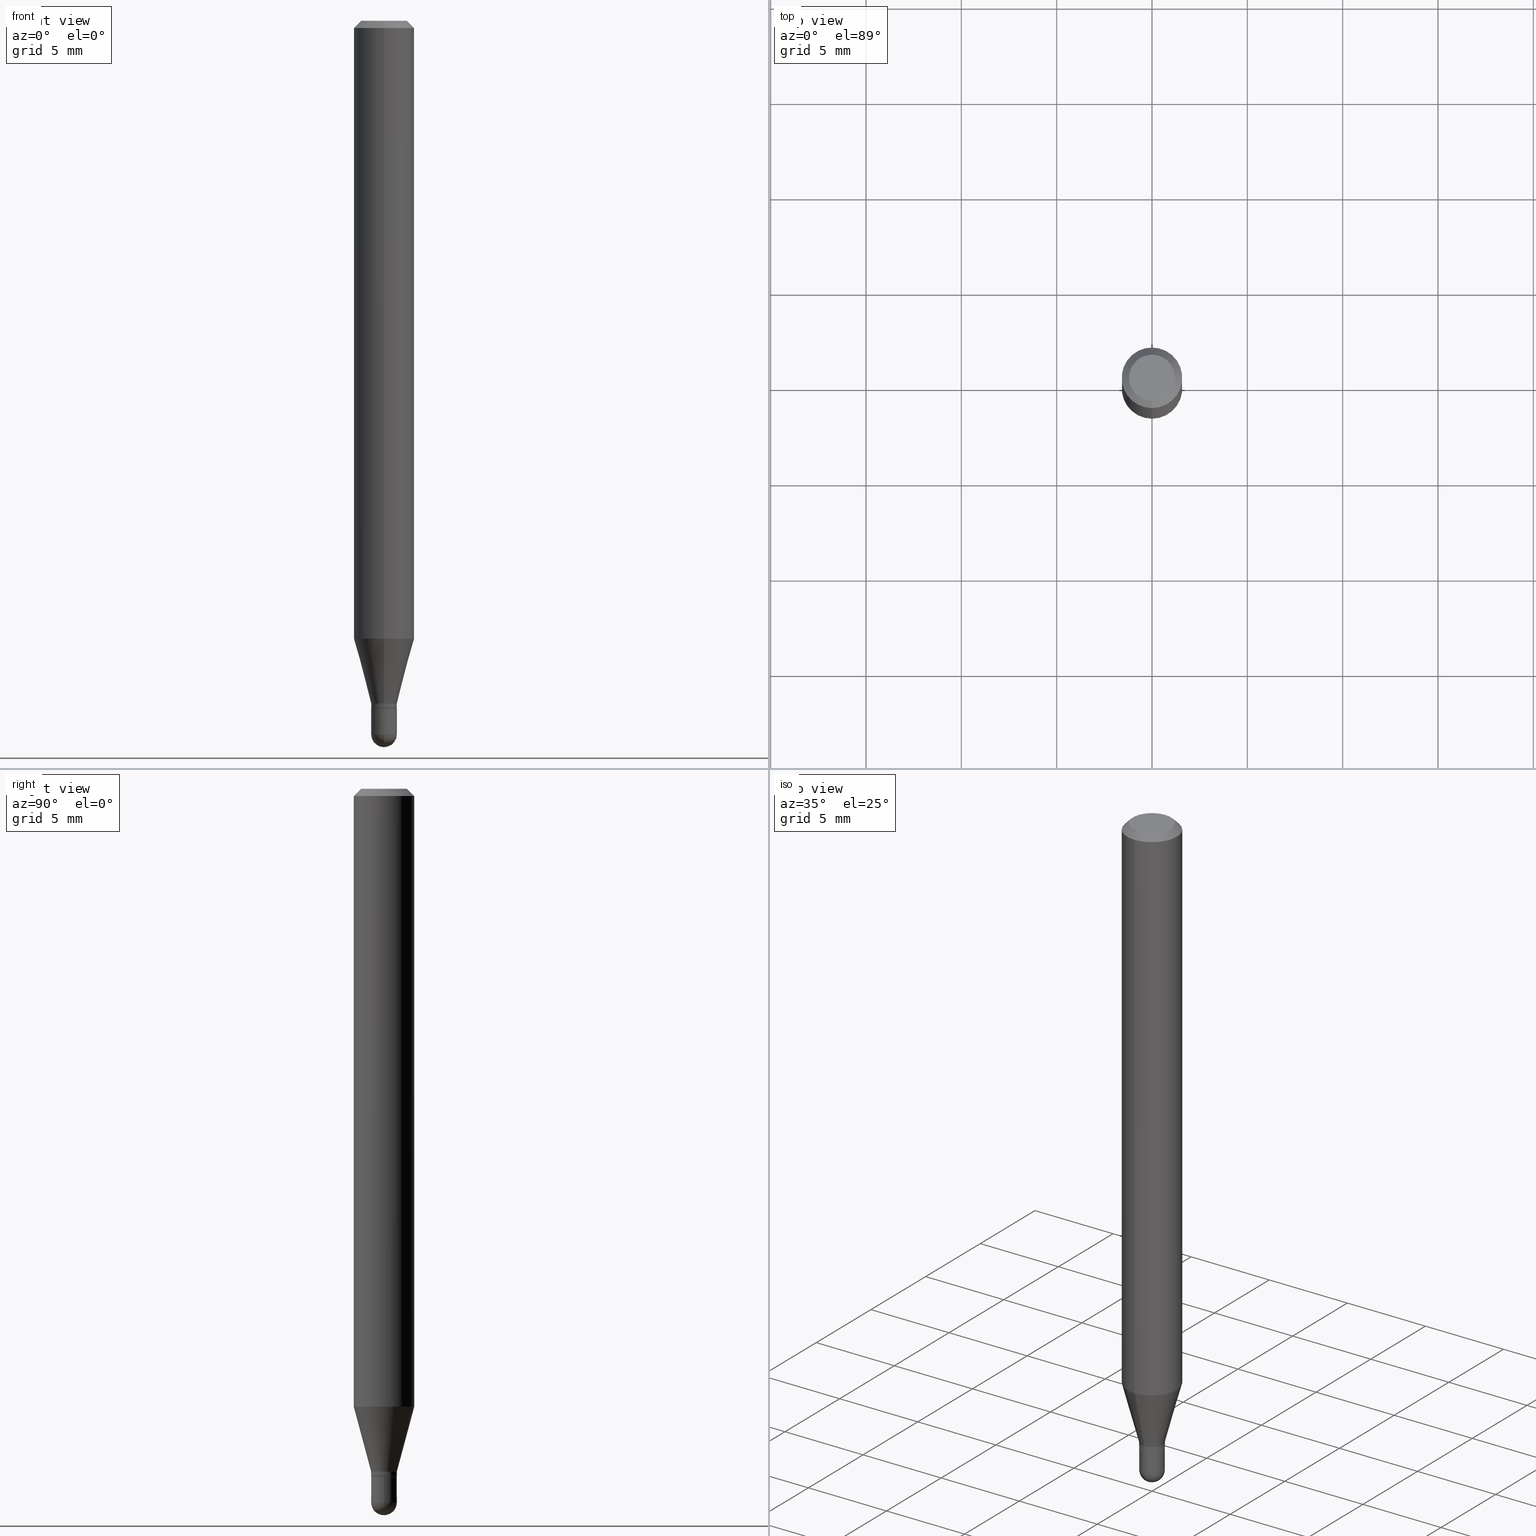
[diagram: canonical four-view strip — front | top / right | iso, engineering-drawing reading convention]
A machine part, canonical four-view strip (front | top / right | iso — engineering-drawing reading convention). The complete STEP part file that produces these views, byte-faithful:
ISO-10303-21;
HEADER;
FILE_DESCRIPTION (( 'STEP AP203' ),
    '1' );
FILE_NAME ('00717.STEP',
    '2024-03-07T18:06:19',
    ( '' ),
    ( '' ),
    'SwSTEP 2.0',
    'SolidWorks 2023',
    '' );
FILE_SCHEMA (( 'CONFIG_CONTROL_DESIGN' ));
ENDSEC;

DATA;
#1 = AXIS2_PLACEMENT_3D ( 'NONE', #183, #483, #176 ) ;
#2 = PERSON_AND_ORGANIZATION_ROLE ( 'design_supplier' ) ;
#3 = EDGE_CURVE ( 'NONE', #510, #417, #318, .T. ) ;
#4 = ORIENTED_EDGE ( 'NONE', *, *, #464, .F. ) ;
#5 = DIRECTION ( 'NONE',  ( -2.445481784705072180E-29, 3.491462752863905910E-15, 1.000000000000000000 ) ) ;
#6 = COORDINATED_UNIVERSAL_TIME_OFFSET ( 5, 0, .BEHIND. ) ;
#7 = ORIENTED_EDGE ( 'NONE', *, *, #30, .T. ) ;
#8 = EDGE_CURVE ( 'NONE', #417, #119, #381, .T. ) ;
#9 = CARTESIAN_POINT ( 'NONE',  ( -1.850485109586510286E-16, -0.02650000000000484607, -1.409999999999999920 ) ) ;
#10 = APPROVAL_PERSON_ORGANIZATION ( #404, #137, #87 ) ;
#11 = CIRCLE ( 'NONE', #469, 0.06250000000000000000 ) ;
#12 = VECTOR ( 'NONE', #425, 39.37007874015748143 ) ;
#13 = ORIENTED_EDGE ( 'NONE', *, *, #65, .T. ) ;
#14 = CARTESIAN_POINT ( 'NONE',  ( 0.000000000000000000, 0.000000000000000000, 0.000000000000000000 ) ) ;
#15 = CARTESIAN_POINT ( 'NONE',  ( 3.601132095247472724E-29, -5.147943066803115176E-15, -1.473500000000000032 ) ) ;
#16 = ORIENTED_EDGE ( 'NONE', *, *, #89, .T. ) ;
#17 = DIRECTION ( 'NONE',  ( 2.445481784705072180E-29, -3.491462752863906305E-15, -1.000000000000000000 ) ) ;
#18 = EDGE_CURVE ( 'NONE', #37, #148, #503, .T. ) ;
#19 = DIRECTION ( 'NONE',  ( 6.982962677686265922E-15, 1.000000000000000000, -3.483106191921935554E-15 ) ) ;
#20 = ADVANCED_FACE ( 'NONE', ( #489 ), #244, .F. ) ;
#21 = CARTESIAN_POINT ( 'NONE',  ( -3.773273898774340269E-16, -0.04749999999999999362, 1.569832783351905735E-16 ) ) ;
#22 = CYLINDRICAL_SURFACE ( 'NONE', #128, 0.06250000000000000000 ) ;
#23 = DIRECTION ( 'NONE',  ( 1.000000000000000000, -6.982962677686277755E-15, 0.000000000000000000 ) ) ;
#24 = DIRECTION ( 'NONE',  ( 5.024295867788190974E-15, 0.7071067811865681119, 0.7071067811865270336 ) ) ;
#25 = CIRCLE ( 'NONE', #62, 0.02649999999999992292 ) ;
#26 = PRODUCT_DEFINITION ( 'UNKNOWN', '', #309, #45 ) ;
#27 = EDGE_LOOP ( 'NONE', ( #76, #426, #266, #198 ) ) ;
#28 = SPHERICAL_SURFACE ( 'NONE', #90, 0.02650000000000006170 ) ;
#29 = ORIENTED_EDGE ( 'NONE', *, *, #400, .F. ) ;
#30 = EDGE_CURVE ( 'NONE', #119, #169, #11, .T. ) ;
#31 = DIRECTION ( 'NONE',  ( -6.982962677686265133E-15, -1.000000000000000000, 3.491462752863906305E-15 ) ) ;
#32 = DIRECTION ( 'NONE',  ( -2.445468806185136597E-29, 3.491481338843145583E-15, 1.000000000000000000 ) ) ;
#33 = ORIENTED_EDGE ( 'NONE', *, *, #142, .F. ) ;
#34 = CARTESIAN_POINT ( 'NONE',  ( 0.000000000000000000, 0.000000000000000000, 0.000000000000000000 ) ) ;
#35 = LINE ( 'NONE', #151, #38 ) ;
#36 = CONICAL_SURFACE ( 'NONE', #256, 0.02599999999999999534, 0.7853981633974739252 ) ;
#37 = VERTEX_POINT ( 'NONE', #9 ) ;
#38 = VECTOR ( 'NONE', #420, 39.37007874015748143 ) ;
#39 = CARTESIAN_POINT ( 'NONE',  ( -0.02649999999999999925, -4.863006801994895019E-15, -1.420000000000000151 ) ) ;
#40 = CARTESIAN_POINT ( 'NONE',  ( 3.668222677057610775E-31, -5.237194129295862514E-17, -0.01500000000000000812 ) ) ;
#41 = ORIENTED_EDGE ( 'NONE', *, *, #380, .T. ) ;
#42 = SECURITY_CLASSIFICATION_LEVEL ( 'unclassified' ) ;
#43 = APPROVAL_STATUS ( 'not_yet_approved' ) ;
#44 =( CONVERSION_BASED_UNIT ( 'INCH', #280 ) LENGTH_UNIT ( ) NAMED_UNIT ( #443 ) );
#45 = DESIGN_CONTEXT ( 'detailed design', #264, 'design' ) ;
#46 = DIRECTION ( 'NONE',  ( -2.445481784705072180E-29, 3.491462752863906305E-15, 1.000000000000000000 ) ) ;
#47 = DIRECTION ( 'NONE',  ( -2.445468806185136597E-29, 3.491481338843145583E-15, 1.000000000000000000 ) ) ;
#48 = AXIS2_PLACEMENT_3D ( 'NONE', #327, #124, #88 ) ;
#49 = CIRCLE ( 'NONE', #335, 0.06250000000000000000 ) ;
#50 = ORIENTED_EDGE ( 'NONE', *, *, #512, .F. ) ;
#51 = PERSON_AND_ORGANIZATION ( #355, #179 ) ;
#52 = EDGE_CURVE ( 'NONE', #37, #510, #357, .T. ) ;
#53 = ORIENTED_EDGE ( 'NONE', *, *, #118, .T. ) ;
#54 = CC_DESIGN_APPROVAL ( #94, ( #26 ) ) ;
#55 = CARTESIAN_POINT ( 'NONE',  ( 2.166990912298824479E-46, -3.093855821542496760E-32, -8.861202425844959291E-18 ) ) ;
#56 = CIRCLE ( 'NONE', #60, 0.02650000000000000272 ) ;
#57 = CIRCLE ( 'NONE', #147, 0.02649999999999992639 ) ;
#58 = DIRECTION ( 'NONE',  ( -6.982962677686265133E-15, -1.000000000000000000, 3.491462752863906305E-15 ) ) ;
#59 = ADVANCED_FACE ( 'NONE', ( #212 ), #96, .T. ) ;
#60 = AXIS2_PLACEMENT_3D ( 'NONE', #171, #325, #429 ) ;
#61 = AXIS2_PLACEMENT_3D ( 'NONE', #283, #485, #293 ) ;
#62 = AXIS2_PLACEMENT_3D ( 'NONE', #150, #265, #305 ) ;
#63 = PLANE ( 'NONE',  #385 ) ;
#64 = DIRECTION ( 'NONE',  ( -6.982962677686265922E-15, -1.000000000000000000, 4.370956789862821150E-15 ) ) ;
#65 = EDGE_CURVE ( 'NONE', #421, #37, #315, .T. ) ;
#66 = ORIENTED_EDGE ( 'NONE', *, *, #142, .T. ) ;
#67 = DIRECTION ( 'NONE',  ( -2.445481784705072180E-29, 3.491462752863906305E-15, 1.000000000000000000 ) ) ;
#68 = DIRECTION ( 'NONE',  ( 1.000000000000000000, -6.982962677686265922E-15, 4.883557194083112340E-29 ) ) ;
#69 = VERTEX_POINT ( 'NONE', #475 ) ;
#70 = CARTESIAN_POINT ( 'NONE',  ( 3.472584134281202619E-29, -4.957877109066747316E-15, -1.420000000000000151 ) ) ;
#71 = CARTESIAN_POINT ( 'NONE',  ( -1.882938249763907247E-16, -0.02650000000000517567, -1.473500000000000032 ) ) ;
#72 = LOCAL_TIME ( 13, 6, 19.00000000000000000, #6 ) ;
#73 = CARTESIAN_POINT ( 'NONE',  ( -0.02650000000000000272, -4.863006801994895019E-15, -1.473500000000000032 ) ) ;
#74 = VECTOR ( 'NONE', #77, 39.37007874015748143 ) ;
#75 = ADVANCED_FACE ( 'NONE', ( #361 ), #131, .T. ) ;
#76 = ORIENTED_EDGE ( 'NONE', *, *, #101, .F. ) ;
#77 = DIRECTION ( 'NONE',  ( -2.445468806185136877E-29, 3.491481338843145188E-15, 1.000000000000000000 ) ) ;
#78 = DIRECTION ( 'NONE',  ( -4.851104656540964275E-15, -0.7071067811865500152, -0.7071067811865450192 ) ) ;
#79 = ORIENTED_EDGE ( 'NONE', *, *, #101, .T. ) ;
#80 = ORIENTED_EDGE ( 'NONE', *, *, #174, .F. ) ;
#81 = LOCAL_TIME ( 13, 6, 19.00000000000000000, #164 ) ;
#82 = ORIENTED_EDGE ( 'NONE', *, *, #453, .T. ) ;
#83 = CIRCLE ( 'NONE', #373, 0.02650000000000000272 ) ;
#84 = FACE_OUTER_BOUND ( 'NONE', #27, .T. ) ;
#85 = COORDINATED_UNIVERSAL_TIME_OFFSET ( 5, 0, .BEHIND. ) ;
#86 = LOCAL_TIME ( 13, 6, 19.00000000000000000, #215 ) ;
#87 = APPROVAL_ROLE ( '' ) ;
#88 = DIRECTION ( 'NONE',  ( -7.105427357601001070E-15, -1.000000000000000000, 0.000000000000000000 ) ) ;
#89 = EDGE_CURVE ( 'NONE', #383, #163, #56, .T. ) ;
#90 = AXIS2_PLACEMENT_3D ( 'NONE', #498, #276, #91 ) ;
#91 = DIRECTION ( 'NONE',  ( 6.982962677686265922E-15, 1.000000000000000000, 0.000000000000000000 ) ) ;
#92 = VERTEX_POINT ( 'NONE', #323 ) ;
#93 = CALENDAR_DATE ( 2024, 7, 3 ) ;
#94 = APPROVAL ( #253, 'UNSPECIFIED' ) ;
#95 = ADVANCED_FACE ( 'NONE', ( #84 ), #36, .T. ) ;
#96 = CONICAL_SURFACE ( 'NONE', #384, 0.02599999999999999534, 0.7853981633974739252 ) ;
#97 = VECTOR ( 'NONE', #454, 39.37007874015748143 ) ;
#98 = SPHERICAL_SURFACE ( 'NONE', #402, 0.02650000000000006170 ) ;
#99 = FACE_OUTER_BOUND ( 'NONE', #358, .T. ) ;
#100 = DIRECTION ( 'NONE',  ( 1.000000000000000000, -6.982962677686276966E-15, 0.000000000000000000 ) ) ;
#101 = EDGE_CURVE ( 'NONE', #466, #401, #300, .T. ) ;
#102 =( GEOMETRIC_REPRESENTATION_CONTEXT ( 3 ) GLOBAL_UNCERTAINTY_ASSIGNED_CONTEXT ( ( #437 ) ) GLOBAL_UNIT_ASSIGNED_CONTEXT ( ( #44, #362, #396 ) ) REPRESENTATION_CONTEXT ( 'NONE', 'WORKASPACE' ) );
#103 = FACE_OUTER_BOUND ( 'NONE', #247, .T. ) ;
#104 = ORIENTED_EDGE ( 'NONE', *, *, #512, .T. ) ;
#105 = CARTESIAN_POINT ( 'NONE',  ( 3.471361393388851333E-29, -4.956131377690316324E-15, -1.419500000000000206 ) ) ;
#106 = CARTESIAN_POINT ( 'NONE',  ( 4.440892098500625669E-16, 0.06250000000000000000, -2.182164220539941440E-16 ) ) ;
#107 = DIRECTION ( 'NONE',  ( -6.982962677686265133E-15, -1.000000000000000000, 0.000000000000000000 ) ) ;
#108 = CARTESIAN_POINT ( 'NONE',  ( 3.472565704782894214E-29, -4.957903501157267351E-15, -1.420000000000000151 ) ) ;
#109 = DIRECTION ( 'NONE',  ( -2.445468806185136597E-29, 3.491481338843145583E-15, 1.000000000000000000 ) ) ;
#110 = EDGE_CURVE ( 'NONE', #148, #417, #158, .T. ) ;
#111 = ORIENTED_EDGE ( 'NONE', *, *, #195, .F. ) ;
#112 = FACE_OUTER_BOUND ( 'NONE', #434, .T. ) ;
#113 = AXIS2_PLACEMENT_3D ( 'NONE', #478, #403, #133 ) ;
#114 = DIRECTION ( 'NONE',  ( 1.000000000000000000, -6.982962677686277755E-15, 0.000000000000000000 ) ) ;
#115 = CONICAL_SURFACE ( 'NONE', #330, 0.02649999999999992639, 0.2617993877991506291 ) ;
#116 = ORIENTED_EDGE ( 'NONE', *, *, #65, .F. ) ;
#117 = CARTESIAN_POINT ( 'NONE',  ( -4.364351673553912750E-16, -0.06250000000000005551, -0.01499999999999979128 ) ) ;
#118 = EDGE_CURVE ( 'NONE', #447, #157, #350, .T. ) ;
#119 = VERTEX_POINT ( 'NONE', #278 ) ;
#120 = ADVANCED_FACE ( 'NONE', ( #389 ), #121, .T. ) ;
#121 = CYLINDRICAL_SURFACE ( 'NONE', #364, 0.02649999999999992639 ) ;
#122 = CARTESIAN_POINT ( 'NONE',  ( 2.166990912298824479E-46, -3.093855821542496760E-32, -8.861202425844959291E-18 ) ) ;
#123 = ORIENTED_EDGE ( 'NONE', *, *, #380, .F. ) ;
#124 = DIRECTION ( 'NONE',  ( -1.000000000000000000, 7.105427357601001070E-15, -4.926315508542082329E-29 ) ) ;
#125 = VECTOR ( 'NONE', #5, 39.37007874015748143 ) ;
#126 = CARTESIAN_POINT ( 'NONE',  ( -1.850485109586855166E-16, -0.02649999999999992639, 9.252376295089325636E-17 ) ) ;
#127 = CALENDAR_DATE ( 2024, 7, 3 ) ;
#128 = AXIS2_PLACEMENT_3D ( 'NONE', #184, #337, #492 ) ;
#129 = EDGE_CURVE ( 'NONE', #383, #447, #346, .T. ) ;
#130 = EDGE_CURVE ( 'NONE', #148, #37, #57, .T. ) ;
#131 = CYLINDRICAL_SURFACE ( 'NONE', #329, 0.02650000000000000272 ) ;
#132 = APPROVAL_ROLE ( '' ) ;
#133 = DIRECTION ( 'NONE',  ( 1.000000000000000000, 0.000000000000000000, 0.000000000000000000 ) ) ;
#134 = ORIENTED_EDGE ( 'NONE', *, *, #195, .T. ) ;
#135 = COORDINATED_UNIVERSAL_TIME_OFFSET ( 5, 0, .BEHIND. ) ;
#136 = AXIS2_PLACEMENT_3D ( 'NONE', #336, #289, #448 ) ;
#137 = APPROVAL ( #43, 'UNSPECIFIED' ) ;
#138 = DIRECTION ( 'NONE',  ( -2.445481784705072180E-29, 3.491462752863906305E-15, 1.000000000000000000 ) ) ;
#139 = AXIS2_PLACEMENT_3D ( 'NONE', #399, #46, #58 ) ;
#140 = ORIENTED_EDGE ( 'NONE', *, *, #440, .T. ) ;
#141 = DIRECTION ( 'NONE',  ( -2.445468806185136597E-29, 3.491481338843145583E-15, 1.000000000000000000 ) ) ;
#142 = EDGE_CURVE ( 'NONE', #421, #401, #25, .T. ) ;
#143 = CARTESIAN_POINT ( 'NONE',  ( 0.02650000000000000272, -5.236349137930007031E-15, -1.473500000000000032 ) ) ;
#144 = ORIENTED_EDGE ( 'NONE', *, *, #464, .T. ) ;
#145 = DIRECTION ( 'NONE',  ( -2.445481784705072180E-29, 3.491462752863906305E-15, 1.000000000000000000 ) ) ;
#146 = AXIS2_PLACEMENT_3D ( 'NONE', #482, #226, #64 ) ;
#147 = AXIS2_PLACEMENT_3D ( 'NONE', #500, #344, #107 ) ;
#148 = VERTEX_POINT ( 'NONE', #462 ) ;
#149 = DIRECTION ( 'NONE',  ( 2.438088387897960049E-29, -3.491481338843145188E-15, -1.000000000000000000 ) ) ;
#150 = CARTESIAN_POINT ( 'NONE',  ( 3.471361393388851333E-29, -4.956131377690316324E-15, -1.419500000000000206 ) ) ;
#151 = CARTESIAN_POINT ( 'NONE',  ( -4.364351673553916201E-16, -0.06250000000000000000, 2.182164220539941440E-16 ) ) ;
#152 = ORIENTED_EDGE ( 'NONE', *, *, #8, .F. ) ;
#153 = CARTESIAN_POINT ( 'NONE',  ( -1.815570296198081694E-16, -0.02600000000000495318, -1.420000000000000151 ) ) ;
#154 = ORIENTED_EDGE ( 'NONE', *, *, #129, .T. ) ;
#155 = FACE_OUTER_BOUND ( 'NONE', #497, .T. ) ;
#156 = AXIS2_PLACEMENT_3D ( 'NONE', #341, #390, #393 ) ;
#157 = VERTEX_POINT ( 'NONE', #382 ) ;
#158 = LINE ( 'NONE', #416, #290 ) ;
#159 = EDGE_CURVE ( 'NONE', #499, #157, #455, .T. ) ;
#160 = ORIENTED_EDGE ( 'NONE', *, *, #89, .F. ) ;
#161 = DIRECTION ( 'NONE',  ( 6.982962677686265922E-15, 1.000000000000000000, 0.000000000000000000 ) ) ;
#162 = CARTESIAN_POINT ( 'NONE',  ( 3.472584134281202619E-29, -4.957877109066747316E-15, -1.420000000000000151 ) ) ;
#163 = VERTEX_POINT ( 'NONE', #71 ) ;
#164 = COORDINATED_UNIVERSAL_TIME_OFFSET ( 5, 0, .BEHIND. ) ;
#165 = CC_DESIGN_APPROVAL ( #508, ( #295 ) ) ;
#166 = PERSON_AND_ORGANIZATION_ROLE ( 'creator' ) ;
#167 = AXIS2_PLACEMENT_3D ( 'NONE', #182, #138, #488 ) ;
#168 = ADVANCED_FACE ( 'NONE', ( #155 ), #28, .T. ) ;
#169 = VERTEX_POINT ( 'NONE', #117 ) ;
#170 = CALENDAR_DATE ( 2024, 7, 3 ) ;
#171 = CARTESIAN_POINT ( 'NONE',  ( 3.603398285913798748E-29, -5.144697752785374543E-15, -1.473500000000000032 ) ) ;
#172 = ORIENTED_EDGE ( 'NONE', *, *, #174, .T. ) ;
#173 = AXIS2_PLACEMENT_3D ( 'NONE', #433, #398, #205 ) ;
#174 = EDGE_CURVE ( 'NONE', #69, #237, #392, .T. ) ;
#175 = CIRCLE ( 'NONE', #428, 0.02650000000000000272 ) ;
#176 = DIRECTION ( 'NONE',  ( 1.000000000000000000, -6.982962677686276966E-15, 0.000000000000000000 ) ) ;
#177 = EDGE_CURVE ( 'NONE', #388, #466, #412, .T. ) ;
#178 = CARTESIAN_POINT ( 'NONE',  ( 4.364351673553919652E-16, 0.06249999999999995143, -0.01500000000000022669 ) ) ;
#179 = ORGANIZATION ( 'UNSPECIFIED', 'UNSPECIFIED', '' ) ;
#180 = CIRCLE ( 'NONE', #1, 0.02650000000000000272 ) ;
#181 = ADVANCED_FACE ( 'NONE', ( #410 ), #98, .T. ) ;
#182 = CARTESIAN_POINT ( 'NONE',  ( 3.472584134281202619E-29, -4.957877109066747316E-15, -1.420000000000000151 ) ) ;
#183 = CARTESIAN_POINT ( 'NONE',  ( 3.603398285913798748E-29, -5.144697752785374543E-15, -1.473500000000000032 ) ) ;
#184 = CARTESIAN_POINT ( 'NONE',  ( 0.000000000000000000, 0.000000000000000000, 0.000000000000000000 ) ) ;
#185 = EDGE_CURVE ( 'NONE', #92, #383, #175, .T. ) ;
#186 = VECTOR ( 'NONE', #24, 39.37007874015748143 ) ;
#187 = DIRECTION ( 'NONE',  ( -2.445481784705072180E-29, 3.491462752863906305E-15, 1.000000000000000000 ) ) ;
#188 = ORIENTED_EDGE ( 'NONE', *, *, #110, .T. ) ;
#189 = CARTESIAN_POINT ( 'NONE',  ( 1.882938249764600212E-16, 0.02649999999999487488, -1.419500000000000206 ) ) ;
#190 = ORIENTED_EDGE ( 'NONE', *, *, #306, .F. ) ;
#191 = CC_DESIGN_DATE_AND_TIME_ASSIGNMENT ( #477, #202, ( #295 ) ) ;
#192 = MANIFOLD_SOLID_BREP ( 'Body-Move/Copy2[1]', #271 ) ;
#193 = CARTESIAN_POINT ( 'NONE',  ( 1.865174681370607059E-16, 0.02599999999999504097, -1.420000000000000151 ) ) ;
#194 = ORIENTED_EDGE ( 'NONE', *, *, #159, .T. ) ;
#195 = EDGE_CURVE ( 'NONE', #163, #499, #180, .T. ) ;
#196 = AXIS2_PLACEMENT_3D ( 'NONE', #311, #68, #161 ) ;
#197 = LINE ( 'NONE', #347, #243 ) ;
#198 = ORIENTED_EDGE ( 'NONE', *, *, #274, .F. ) ;
#199 = CARTESIAN_POINT ( 'NONE',  ( -4.287811248607203282E-16, -0.06250000000000005551, -0.01499999999999979128 ) ) ;
#200 = DIRECTION ( 'NONE',  ( -6.982962677686266711E-15, -1.000000000000000000, 0.000000000000000000 ) ) ;
#201 = ORIENTED_EDGE ( 'NONE', *, *, #424, .T. ) ;
#202 = DATE_TIME_ROLE ( 'classification_date' ) ;
#203 = APPLICATION_CONTEXT ( 'configuration controlled 3d designs of mechanical parts and assemblies' ) ;
#204 = CALENDAR_DATE ( 2024, 7, 3 ) ;
#205 = DIRECTION ( 'NONE',  ( -6.982962677686265922E-15, -1.000000000000000000, 3.491462752863906305E-15 ) ) ;
#206 = EDGE_CURVE ( 'NONE', #69, #119, #407, .T. ) ;
#207 = CONICAL_SURFACE ( 'NONE', #486, 0.06250000000000000000, 0.7853981633974483900 ) ;
#208 = DIRECTION ( 'NONE',  ( -6.982962677686265922E-15, -1.000000000000000000, 3.483106191921935554E-15 ) ) ;
#209 = PERSON_AND_ORGANIZATION ( #355, #179 ) ;
#210 = CIRCLE ( 'NONE', #470, 0.04749999999999999362 ) ;
#211 = EDGE_LOOP ( 'NONE', ( #304, #16, #134, #194, #296 ) ) ;
#212 = FACE_OUTER_BOUND ( 'NONE', #345, .T. ) ;
#213 = APPROVAL_DATE_TIME ( #395, #508 ) ;
#214 = EDGE_LOOP ( 'NONE', ( #50, #41, #4, #111 ) ) ;
#215 = COORDINATED_UNIVERSAL_TIME_OFFSET ( 5, 0, .BEHIND. ) ;
#216 = PERSON_AND_ORGANIZATION_ROLE ( 'design_owner' ) ;
#217 = CONICAL_SURFACE ( 'NONE', #287, 0.06250000000000000000, 0.7853981633974483900 ) ;
#218 = DIRECTION ( 'NONE',  ( -6.982962677686266711E-15, -1.000000000000000000, 3.491462752863906305E-15 ) ) ;
#219 = FACE_OUTER_BOUND ( 'NONE', #301, .T. ) ;
#220 = CARTESIAN_POINT ( 'NONE',  ( 3.603398285913798748E-29, -5.144697752785374543E-15, -1.473500000000000032 ) ) ;
#221 = FACE_OUTER_BOUND ( 'NONE', #370, .T. ) ;
#222 = ADVANCED_FACE ( 'NONE', ( #112 ), #115, .T. ) ;
#223 = ORIENTED_EDGE ( 'NONE', *, *, #3, .T. ) ;
#224 = AXIS2_PLACEMENT_3D ( 'NONE', #70, #467, #320 ) ;
#225 = VECTOR ( 'NONE', #291, 39.37007874015748143 ) ;
#226 = DIRECTION ( 'NONE',  ( -2.445481784705072180E-29, 3.491462752863906305E-15, 1.000000000000000000 ) ) ;
#227 = PRODUCT_DEFINITION_SHAPE ( 'NONE', 'NONE',  #26 ) ;
#228 = DIRECTION ( 'NONE',  ( -6.982962677686265133E-15, -1.000000000000000000, 0.000000000000000000 ) ) ;
#229 = CC_DESIGN_PERSON_AND_ORGANIZATION_ASSIGNMENT ( #209, #166, ( #26 ) ) ;
#230 = ORIENTED_EDGE ( 'NONE', *, *, #487, .F. ) ;
#231 = DIRECTION ( 'NONE',  ( -6.982962677686265133E-15, -1.000000000000000000, 0.000000000000000000 ) ) ;
#232 = CARTESIAN_POINT ( 'NONE',  ( 3.119569474732024793E-29, -4.453871091626903081E-15, -1.275646170927520862 ) ) ;
#233 = ORIENTED_EDGE ( 'NONE', *, *, #206, .T. ) ;
#234 = AXIS2_PLACEMENT_3D ( 'NONE', #55, #378, #218 ) ;
#235 = CARTESIAN_POINT ( 'NONE',  ( -1.815570296198081694E-16, -0.02600000000000495318, -1.420000000000000151 ) ) ;
#236 = ADVANCED_FACE ( 'NONE', ( #349 ), #63, .F. ) ;
#237 = VERTEX_POINT ( 'NONE', #21 ) ;
#238 = CARTESIAN_POINT ( 'NONE',  ( 3.603398285913798748E-29, -5.144697752785374543E-15, -1.473500000000000032 ) ) ;
#239 = ORIENTED_EDGE ( 'NONE', *, *, #400, .T. ) ;
#240 = EDGE_CURVE ( 'NONE', #169, #119, #481, .T. ) ;
#241 = CARTESIAN_POINT ( 'NONE',  ( 4.440892098500934804E-16, 0.06249999999999551747, -1.275646170927521084 ) ) ;
#242 = VERTEX_POINT ( 'NONE', #408 ) ;
#243 = VECTOR ( 'NONE', #353, 39.37007874015748143 ) ;
#244 = PLANE ( 'NONE',  #224 ) ;
#245 = CIRCLE ( 'NONE', #167, 0.02599999999999999534 ) ;
#246 = DIRECTION ( 'NONE',  ( -6.982962677686265922E-15, -1.000000000000000000, 4.370956789862821150E-15 ) ) ;
#247 = EDGE_LOOP ( 'NONE', ( #223, #314, #394, #484 ) ) ;
#248 = APPROVAL_DATE_TIME ( #359, #137 ) ;
#249 = CARTESIAN_POINT ( 'NONE',  ( 3.472584134281202619E-29, -4.957877109066747316E-15, -1.420000000000000151 ) ) ;
#250 = CYLINDRICAL_SURFACE ( 'NONE', #173, 0.06250000000000000000 ) ;
#251 = CARTESIAN_POINT ( 'NONE',  ( -4.364351673553605587E-16, -0.06250000000000446865, -1.275646170927520417 ) ) ;
#252 = EDGE_LOOP ( 'NONE', ( #502, #80, #233, #7 ) ) ;
#253 = APPROVAL_STATUS ( 'not_yet_approved' ) ;
#254 = MECHANICAL_CONTEXT ( 'NONE', #203, 'mechanical' ) ;
#255 = PERSON_AND_ORGANIZATION ( #355, #179 ) ;
#256 = AXIS2_PLACEMENT_3D ( 'NONE', #249, #397, #442 ) ;
#257 = AXIS2_PLACEMENT_3D ( 'NONE', #495, #109, #23 ) ;
#258 = PERSON_AND_ORGANIZATION ( #355, #179 ) ;
#259 = DIRECTION ( 'NONE',  ( -6.982962677686266711E-15, -1.000000000000000000, 0.000000000000000000 ) ) ;
#260 = ADVANCED_FACE ( 'NONE', ( #99 ), #217, .T. ) ;
#261 = PLANE ( 'NONE',  #136 ) ;
#262 = PRODUCT ( '00717', '00717', '', ( #254 ) ) ;
#263 = ADVANCED_FACE ( 'NONE', ( #452 ), #22, .T. ) ;
#264 = APPLICATION_CONTEXT ( 'configuration controlled 3d designs of mechanical parts and assemblies' ) ;
#265 = DIRECTION ( 'NONE',  ( -2.445481784705072180E-29, 3.491462752863906305E-15, 1.000000000000000000 ) ) ;
#266 = ORIENTED_EDGE ( 'NONE', *, *, #414, .T. ) ;
#267 = CARTESIAN_POINT ( 'NONE',  ( 0.02650000000000000272, -1.850485109586860836E-16, 1.292186845585923132E-30 ) ) ;
#268 = DIRECTION ( 'NONE',  ( -6.982962677686266711E-15, -1.000000000000000000, 3.491462752863906305E-15 ) ) ;
#269 = ORIENTED_EDGE ( 'NONE', *, *, #424, .F. ) ;
#270 = CARTESIAN_POINT ( 'NONE',  ( 3.448129316434151668E-29, -4.922962481538108544E-15, -1.409999999999999920 ) ) ;
#271 = CLOSED_SHELL ( 'NONE', ( #352, #168, #236, #181, #75 ) ) ;
#272 = CIRCLE ( 'NONE', #196, 0.02650000000000006170 ) ;
#273 = DIRECTION ( 'NONE',  ( 1.000000000000000000, -6.982962677686266711E-15, 4.876176775795935793E-29 ) ) ;
#274 = EDGE_CURVE ( 'NONE', #401, #421, #319, .T. ) ;
#275 = ORIENTED_EDGE ( 'NONE', *, *, #274, .T. ) ;
#276 = DIRECTION ( 'NONE',  ( -1.000000000000000000, 6.982962677686265922E-15, -4.883557194083112901E-29 ) ) ;
#277 = ORIENTED_EDGE ( 'NONE', *, *, #240, .T. ) ;
#278 = CARTESIAN_POINT ( 'NONE',  ( 4.440892098500939734E-16, 0.06249999999999995143, -0.01500000000000022669 ) ) ;
#279 = ORIENTED_EDGE ( 'NONE', *, *, #110, .F. ) ;
#280 = LENGTH_MEASURE_WITH_UNIT ( LENGTH_MEASURE( 0.02539999999999999897 ), #423 );
#281 = PRODUCT_RELATED_PRODUCT_CATEGORY ( 'detail', '', ( #262 ) ) ;
#282 = CARTESIAN_POINT ( 'NONE',  ( 0.000000000000000000, 0.000000000000000000, 0.000000000000000000 ) ) ;
#283 = CARTESIAN_POINT ( 'NONE',  ( 3.668222677057610775E-31, -5.237194129295862514E-17, -0.01500000000000000812 ) ) ;
#284 = PERSON_AND_ORGANIZATION_ROLE ( 'creator' ) ;
#285 = CC_DESIGN_PERSON_AND_ORGANIZATION_ASSIGNMENT ( #255, #2, ( #309 ) ) ;
#286 = DIRECTION ( 'NONE',  ( 1.000000000000000000, -6.982962677686266711E-15, 4.876176775795935793E-29 ) ) ;
#287 = AXIS2_PLACEMENT_3D ( 'NONE', #409, #17, #413 ) ;
#288 = ADVANCED_FACE ( 'NONE', ( #432 ), #366, .T. ) ;
#289 = DIRECTION ( 'NONE',  ( 2.445481784705072180E-29, -3.491462752863905910E-15, -1.000000000000000000 ) ) ;
#290 = VECTOR ( 'NONE', #351, 39.37007874015748143 ) ;
#291 = DIRECTION ( 'NONE',  ( -2.445481784705072180E-29, 3.491462752863905910E-15, 1.000000000000000000 ) ) ;
#292 = DIRECTION ( 'NONE',  ( -1.000000000000000000, 6.982962677686265922E-15, -4.883557194083112901E-29 ) ) ;
#293 = DIRECTION ( 'NONE',  ( -6.982962677686265922E-15, -1.000000000000000000, 3.483106191921935554E-15 ) ) ;
#294 = CC_DESIGN_PERSON_AND_ORGANIZATION_ASSIGNMENT ( #480, #317, ( #295 ) ) ;
#295 = SECURITY_CLASSIFICATION ( '', '', #42 ) ;
#296 = ORIENTED_EDGE ( 'NONE', *, *, #118, .F. ) ;
#297 = VECTOR ( 'NONE', #471, 39.37007874015748854 ) ;
#298 = DIRECTION ( 'NONE',  ( -1.000000000000000000, 6.982962677686265922E-15, -4.876176775795935793E-29 ) ) ;
#299 = VECTOR ( 'NONE', #78, 39.37007874015748143 ) ;
#300 = LINE ( 'NONE', #310, #186 ) ;
#301 = EDGE_LOOP ( 'NONE', ( #312, #154, #269, #415, #144 ) ) ;
#302 = CARTESIAN_POINT ( 'NONE',  ( -0.02650000000000000272, 1.882938249764265686E-16, -1.303517798917550101E-30 ) ) ;
#303 = DIRECTION ( 'NONE',  ( -2.445481784705072180E-29, 3.491462752863906305E-15, 1.000000000000000000 ) ) ;
#304 = ORIENTED_EDGE ( 'NONE', *, *, #129, .F. ) ;
#305 = DIRECTION ( 'NONE',  ( -6.982962677686265133E-15, -1.000000000000000000, 0.000000000000000000 ) ) ;
#306 = EDGE_CURVE ( 'NONE', #466, #388, #245, .T. ) ;
#307 = FACE_OUTER_BOUND ( 'NONE', #316, .T. ) ;
#308 = ORIENTED_EDGE ( 'NONE', *, *, #130, .F. ) ;
#309 = PRODUCT_DEFINITION_FORMATION_WITH_SPECIFIED_SOURCE ( 'ANY', '', #262, .NOT_KNOWN. ) ;
#310 = CARTESIAN_POINT ( 'NONE',  ( 1.847411112976607251E-16, 0.02599999999999504097, -1.420000000000000151 ) ) ;
#311 = CARTESIAN_POINT ( 'NONE',  ( 3.601132095247472724E-29, -5.147943066803115176E-15, -1.473500000000000032 ) ) ;
#312 = ORIENTED_EDGE ( 'NONE', *, *, #185, .T. ) ;
#313 = CARTESIAN_POINT ( 'NONE',  ( 3.668222677057610775E-31, -5.237194129295862514E-17, -0.01500000000000000812 ) ) ;
#314 = ORIENTED_EDGE ( 'NONE', *, *, #8, .T. ) ;
#315 = LINE ( 'NONE', #126, #125 ) ;
#316 = EDGE_LOOP ( 'NONE', ( #491, #188, #340, #506 ) ) ;
#317 = PERSON_AND_ORGANIZATION_ROLE ( 'classification_officer' ) ;
#318 = CIRCLE ( 'NONE', #146, 0.06250000000000000000 ) ;
#319 = CIRCLE ( 'NONE', #445, 0.02649999999999992292 ) ;
#320 = DIRECTION ( 'NONE',  ( -6.982962677686265922E-15, -1.000000000000000000, 3.491462752863905910E-15 ) ) ;
#321 = APPROVAL_STATUS ( 'not_yet_approved' ) ;
#322 = APPLICATION_PROTOCOL_DEFINITION ( 'international standard', 'config_control_design', 1994, #264 ) ;
#323 = CARTESIAN_POINT ( 'NONE',  ( 1.850485109587222726E-16, 0.02649999999999488876, -1.473500000000000032 ) ) ;
#324 = DATE_AND_TIME ( #127, #369 ) ;
#325 = DIRECTION ( 'NONE',  ( -2.445468806185136597E-29, 3.491481338843145583E-15, 1.000000000000000000 ) ) ;
#326 = DATE_TIME_ROLE ( 'creation_date' ) ;
#327 = CARTESIAN_POINT ( 'NONE',  ( 3.601132095247472724E-29, -5.147943066803115176E-15, -1.473500000000000032 ) ) ;
#328 = CC_DESIGN_APPROVAL ( #137, ( #309 ) ) ;
#329 = AXIS2_PLACEMENT_3D ( 'NONE', #282, #47, #286 ) ;
#330 = AXIS2_PLACEMENT_3D ( 'NONE', #270, #145, #228 ) ;
#331 = DIRECTION ( 'NONE',  ( -2.445481784705072180E-29, 3.491462752863906305E-15, 1.000000000000000000 ) ) ;
#332 = ADVANCED_FACE ( 'NONE', ( #221 ), #261, .F. ) ;
#333 = CLOSED_SHELL ( 'NONE', ( #288, #59, #260, #501, #405, #222, #263, #490, #332, #20, #95, #120 ) ) ;
#334 = EDGE_LOOP ( 'NONE', ( #66, #348, #342, #116 ) ) ;
#335 = AXIS2_PLACEMENT_3D ( 'NONE', #232, #187, #246 ) ;
#336 = CARTESIAN_POINT ( 'NONE',  ( 3.316907271900976096E-16, 0.04749999999999999362, -1.702750819739580409E-16 ) ) ;
#337 = DIRECTION ( 'NONE',  ( -2.445481784705072180E-29, 3.491462752863906305E-15, 1.000000000000000000 ) ) ;
#338 = DIRECTION ( 'NONE',  ( -6.982962677686265133E-15, -1.000000000000000000, 0.000000000000000000 ) ) ;
#339 = CIRCLE ( 'NONE', #48, 0.02650000000000006170 ) ;
#340 = ORIENTED_EDGE ( 'NONE', *, *, #3, .F. ) ;
#341 = CARTESIAN_POINT ( 'NONE',  ( 3.448129316434151668E-29, -4.922962481538108544E-15, -1.409999999999999920 ) ) ;
#342 = ORIENTED_EDGE ( 'NONE', *, *, #18, .F. ) ;
#343 = DIRECTION ( 'NONE',  ( 4.937700262164548042E-15, 0.7071067811865451302, -0.7071067811865499042 ) ) ;
#344 = DIRECTION ( 'NONE',  ( -2.445481784705072180E-29, 3.491462752863906305E-15, 1.000000000000000000 ) ) ;
#345 = EDGE_LOOP ( 'NONE', ( #354, #79, #33, #494 ) ) ;
#346 = LINE ( 'NONE', #302, #97 ) ;
#347 = CARTESIAN_POINT ( 'NONE',  ( 1.882938249764260016E-16, 0.02649999999999992639, -9.252376295089325636E-17 ) ) ;
#348 = ORIENTED_EDGE ( 'NONE', *, *, #487, .T. ) ;
#349 = FACE_OUTER_BOUND ( 'NONE', #430, .T. ) ;
#350 = CIRCLE ( 'NONE', #257, 0.02649999999999999925 ) ;
#351 = DIRECTION ( 'NONE',  ( 1.839019923739602682E-15, 0.2588190451025252914, 0.9659258262890670910 ) ) ;
#352 = ADVANCED_FACE ( 'NONE', ( #219 ), #375, .T. ) ;
#353 = DIRECTION ( 'NONE',  ( -2.445481784705072180E-29, 3.491462752863905910E-15, 1.000000000000000000 ) ) ;
#354 = ORIENTED_EDGE ( 'NONE', *, *, #177, .T. ) ;
#355 = PERSON ( 'UNSPECIFIED', 'UNSPECIFIED', 'UNSPECIFIED', ('UNSPECIFIED'), ('UNSPECIFIED'), ('UNSPECIFIED') ) ;
#356 = DIRECTION ( 'NONE',  ( 2.445481784705072180E-29, -3.491462752863906305E-15, -1.000000000000000000 ) ) ;
#357 = LINE ( 'NONE', #509, #297 ) ;
#358 = EDGE_LOOP ( 'NONE', ( #422, #82, #277, #457 ) ) ;
#359 = DATE_AND_TIME ( #431, #411 ) ;
#360 = MANIFOLD_SOLID_BREP ( 'Body-Move/Copy2[2]', #333 ) ;
#361 = FACE_OUTER_BOUND ( 'NONE', #211, .T. ) ;
#362 =( NAMED_UNIT ( * ) PLANE_ANGLE_UNIT ( ) SI_UNIT ( $, .RADIAN. ) );
#363 = CC_DESIGN_SECURITY_CLASSIFICATION ( #295, ( #309 ) ) ;
#364 = AXIS2_PLACEMENT_3D ( 'NONE', #34, #419, #31 ) ;
#365 = DIRECTION ( 'NONE',  ( -2.445481784705072180E-29, 3.491462752863906305E-15, 1.000000000000000000 ) ) ;
#366 = CYLINDRICAL_SURFACE ( 'NONE', #139, 0.02649999999999992639 ) ;
#367 = ORIENTED_EDGE ( 'NONE', *, *, #30, .F. ) ;
#368 = DIRECTION ( 'NONE',  ( 6.982962677686265922E-15, 1.000000000000000000, 0.000000000000000000 ) ) ;
#369 = LOCAL_TIME ( 13, 6, 19.00000000000000000, #85 ) ;
#370 = EDGE_LOOP ( 'NONE', ( #172, #391 ) ) ;
#371 = CC_DESIGN_PERSON_AND_ORGANIZATION_ASSIGNMENT ( #473, #216, ( #262 ) ) ;
#372 = AXIS2_PLACEMENT_3D ( 'NONE', #444, #446, #338 ) ;
#373 = AXIS2_PLACEMENT_3D ( 'NONE', #238, #32, #387 ) ;
#374 = EDGE_CURVE ( 'NONE', #237, #69, #210, .T. ) ;
#375 = CYLINDRICAL_SURFACE ( 'NONE', #406, 0.02650000000000000272 ) ;
#376 = CARTESIAN_POINT ( 'NONE',  ( 3.472584134281202619E-29, -4.957877109066747316E-15, -1.420000000000000151 ) ) ;
#377 = CC_DESIGN_DATE_AND_TIME_ASSIGNMENT ( #511, #326, ( #26 ) ) ;
#378 = DIRECTION ( 'NONE',  ( -2.445481784705072180E-29, 3.491462752863906305E-15, 1.000000000000000000 ) ) ;
#379 = CONICAL_SURFACE ( 'NONE', #156, 0.02649999999999992639, 0.2617993877991506291 ) ;
#380 = EDGE_CURVE ( 'NONE', #242, #92, #272, .T. ) ;
#381 = LINE ( 'NONE', #106, #225 ) ;
#382 = CARTESIAN_POINT ( 'NONE',  ( 0.02649999999999999925, -5.142952012115953829E-15, -1.420000000000000151 ) ) ;
#383 = VERTEX_POINT ( 'NONE', #73 ) ;
#384 = AXIS2_PLACEMENT_3D ( 'NONE', #162, #441, #200 ) ;
#385 = AXIS2_PLACEMENT_3D ( 'NONE', #418, #149, #298 ) ;
#386 = ORIENTED_EDGE ( 'NONE', *, *, #185, .F. ) ;
#387 = DIRECTION ( 'NONE',  ( 1.000000000000000000, -6.982962677686276966E-15, 0.000000000000000000 ) ) ;
#388 = VERTEX_POINT ( 'NONE', #235 ) ;
#389 = FACE_OUTER_BOUND ( 'NONE', #460, .T. ) ;
#390 = DIRECTION ( 'NONE',  ( -2.445481784705072180E-29, 3.491462752863906305E-15, 1.000000000000000000 ) ) ;
#391 = ORIENTED_EDGE ( 'NONE', *, *, #374, .T. ) ;
#392 = CIRCLE ( 'NONE', #234, 0.04749999999999999362 ) ;
#393 = DIRECTION ( 'NONE',  ( -6.982962677686265133E-15, -1.000000000000000000, 0.000000000000000000 ) ) ;
#394 = ORIENTED_EDGE ( 'NONE', *, *, #240, .F. ) ;
#395 = DATE_AND_TIME ( #204, #86 ) ;
#396 =( NAMED_UNIT ( * ) SI_UNIT ( $, .STERADIAN. ) SOLID_ANGLE_UNIT ( ) );
#397 = DIRECTION ( 'NONE',  ( -2.445481784705072180E-29, 3.491462752863906305E-15, 1.000000000000000000 ) ) ;
#398 = DIRECTION ( 'NONE',  ( -2.445481784705072180E-29, 3.491462752863906305E-15, 1.000000000000000000 ) ) ;
#399 = CARTESIAN_POINT ( 'NONE',  ( 0.000000000000000000, 0.000000000000000000, 0.000000000000000000 ) ) ;
#400 = EDGE_CURVE ( 'NONE', #417, #510, #49, .T. ) ;
#401 = VERTEX_POINT ( 'NONE', #189 ) ;
#402 = AXIS2_PLACEMENT_3D ( 'NONE', #15, #292, #368 ) ;
#403 = DIRECTION ( 'NONE',  ( 0.000000000000000000, 0.000000000000000000, 1.000000000000000000 ) ) ;
#404 = PERSON_AND_ORGANIZATION ( #355, #179 ) ;
#405 = ADVANCED_FACE ( 'NONE', ( #307 ), #379, .T. ) ;
#406 = AXIS2_PLACEMENT_3D ( 'NONE', #14, #463, #273 ) ;
#407 = LINE ( 'NONE', #178, #461 ) ;
#408 = CARTESIAN_POINT ( 'NONE',  ( 3.667070113944541883E-29, -5.238844665273588493E-15, -1.500000000000000222 ) ) ;
#409 = CARTESIAN_POINT ( 'NONE',  ( 3.668222677057610775E-31, -5.237194129295862514E-17, -0.01500000000000000812 ) ) ;
#410 = FACE_OUTER_BOUND ( 'NONE', #214, .T. ) ;
#411 = LOCAL_TIME ( 13, 6, 19.00000000000000000, #135 ) ;
#412 = CIRCLE ( 'NONE', #493, 0.02599999999999999534 ) ;
#413 = DIRECTION ( 'NONE',  ( 6.982962677686265922E-15, 1.000000000000000000, -3.483106191921935554E-15 ) ) ;
#414 = EDGE_CURVE ( 'NONE', #388, #421, #507, .T. ) ;
#415 = ORIENTED_EDGE ( 'NONE', *, *, #159, .F. ) ;
#416 = CARTESIAN_POINT ( 'NONE',  ( 1.882938249764604649E-16, 0.02649999999999500325, -1.409999999999999920 ) ) ;
#417 = VERTEX_POINT ( 'NONE', #241 ) ;
#418 = CARTESIAN_POINT ( 'NONE',  ( 1.850485109587207688E-16, 0.02649999999999503794, -1.420000000000000151 ) ) ;
#419 = DIRECTION ( 'NONE',  ( -2.445481784705072180E-29, 3.491462752863906305E-15, 1.000000000000000000 ) ) ;
#420 = DIRECTION ( 'NONE',  ( -2.445481784705072180E-29, 3.491462752863905910E-15, 1.000000000000000000 ) ) ;
#421 = VERTEX_POINT ( 'NONE', #459 ) ;
#422 = ORIENTED_EDGE ( 'NONE', *, *, #374, .F. ) ;
#423 =( LENGTH_UNIT ( ) NAMED_UNIT ( * ) SI_UNIT ( $, .METRE. ) );
#424 = EDGE_CURVE ( 'NONE', #157, #447, #438, .T. ) ;
#425 = DIRECTION ( 'NONE',  ( -4.937700262164674260E-15, -0.7071067811865632269, 0.7071067811865319186 ) ) ;
#426 = ORIENTED_EDGE ( 'NONE', *, *, #306, .T. ) ;
#427 = APPROVAL_ROLE ( '' ) ;
#428 = AXIS2_PLACEMENT_3D ( 'NONE', #220, #141, #100 ) ;
#429 = DIRECTION ( 'NONE',  ( 1.000000000000000000, -6.982962677686276966E-15, 0.000000000000000000 ) ) ;
#430 = EDGE_LOOP ( 'NONE', ( #201, #53 ) ) ;
#431 = CALENDAR_DATE ( 2024, 7, 3 ) ;
#432 = FACE_OUTER_BOUND ( 'NONE', #334, .T. ) ;
#433 = CARTESIAN_POINT ( 'NONE',  ( 0.000000000000000000, 0.000000000000000000, 0.000000000000000000 ) ) ;
#434 = EDGE_LOOP ( 'NONE', ( #279, #468, #474, #29 ) ) ;
#435 = PERSON_AND_ORGANIZATION ( #355, #179 ) ;
#436 = APPLICATION_PROTOCOL_DEFINITION ( 'international standard', 'config_control_design', 1994, #203 ) ;
#437 = UNCERTAINTY_MEASURE_WITH_UNIT (LENGTH_MEASURE( 1.000000000000000082E-05 ), #44, 'distance_accuracy_value', 'NONE');
#438 = CIRCLE ( 'NONE', #504, 0.02649999999999999925 ) ;
#439 = APPROVAL_DATE_TIME ( #324, #94 ) ;
#440 = EDGE_CURVE ( 'NONE', #510, #169, #35, .T. ) ;
#441 = DIRECTION ( 'NONE',  ( -2.445481784705072180E-29, 3.491462752863906305E-15, 1.000000000000000000 ) ) ;
#442 = DIRECTION ( 'NONE',  ( -6.982962677686266711E-15, -1.000000000000000000, 0.000000000000000000 ) ) ;
#443 = DIMENSIONAL_EXPONENTS ( 1.000000000000000000, 0.000000000000000000, 0.000000000000000000, 0.000000000000000000, 0.000000000000000000, 0.000000000000000000, 0.000000000000000000 ) ;
#444 = CARTESIAN_POINT ( 'NONE',  ( 3.448129316434151668E-29, -4.922962481538108544E-15, -1.409999999999999920 ) ) ;
#445 = AXIS2_PLACEMENT_3D ( 'NONE', #105, #67, #231 ) ;
#446 = DIRECTION ( 'NONE',  ( -2.445481784705072180E-29, 3.491462752863906305E-15, 1.000000000000000000 ) ) ;
#447 = VERTEX_POINT ( 'NONE', #39 ) ;
#448 = DIRECTION ( 'NONE',  ( 6.982962677686265922E-15, 1.000000000000000000, -3.491462752863905910E-15 ) ) ;
#449 = APPROVAL_PERSON_ORGANIZATION ( #258, #94, #427 ) ;
#450 = ADVANCED_BREP_SHAPE_REPRESENTATION ( '00717', ( #192, #360, #113 ), #102 ) ;
#451 = EDGE_LOOP ( 'NONE', ( #465, #190 ) ) ;
#452 = FACE_OUTER_BOUND ( 'NONE', #476, .T. ) ;
#453 = EDGE_CURVE ( 'NONE', #237, #169, #456, .T. ) ;
#454 = DIRECTION ( 'NONE',  ( -2.445468806185136877E-29, 3.491481338843145188E-15, 1.000000000000000000 ) ) ;
#455 = LINE ( 'NONE', #267, #74 ) ;
#456 = LINE ( 'NONE', #199, #299 ) ;
#457 = ORIENTED_EDGE ( 'NONE', *, *, #206, .F. ) ;
#458 = APPROVAL_PERSON_ORGANIZATION ( #51, #508, #132 ) ;
#459 = CARTESIAN_POINT ( 'NONE',  ( -1.850485109586514230E-16, -0.02650000000000496750, -1.419500000000000206 ) ) ;
#460 = EDGE_LOOP ( 'NONE', ( #230, #275, #13, #308 ) ) ;
#461 = VECTOR ( 'NONE', #343, 39.37007874015748143 ) ;
#462 = CARTESIAN_POINT ( 'NONE',  ( 3.161915174132772068E-16, 0.02649999999999500325, -1.409999999999999920 ) ) ;
#463 = DIRECTION ( 'NONE',  ( -2.445468806185136597E-29, 3.491481338843145583E-15, 1.000000000000000000 ) ) ;
#464 = EDGE_CURVE ( 'NONE', #499, #92, #83, .T. ) ;
#465 = ORIENTED_EDGE ( 'NONE', *, *, #177, .F. ) ;
#466 = VERTEX_POINT ( 'NONE', #193 ) ;
#467 = DIRECTION ( 'NONE',  ( -2.445481784705072180E-29, 3.491462752863905910E-15, 1.000000000000000000 ) ) ;
#468 = ORIENTED_EDGE ( 'NONE', *, *, #130, .T. ) ;
#469 = AXIS2_PLACEMENT_3D ( 'NONE', #40, #365, #208 ) ;
#470 = AXIS2_PLACEMENT_3D ( 'NONE', #122, #303, #268 ) ;
#471 = DIRECTION ( 'NONE',  ( -1.807323732225332900E-15, -0.2588190451025185190, 0.9659258262890689783 ) ) ;
#472 = SHAPE_DEFINITION_REPRESENTATION ( #227, #450 ) ;
#473 = PERSON_AND_ORGANIZATION ( #355, #179 ) ;
#474 = ORIENTED_EDGE ( 'NONE', *, *, #52, .T. ) ;
#475 = CARTESIAN_POINT ( 'NONE',  ( 3.840629472727447874E-16, 0.04749999999999999362, -1.747056831868804643E-16 ) ) ;
#476 = EDGE_LOOP ( 'NONE', ( #152, #239, #140, #367 ) ) ;
#477 = DATE_AND_TIME ( #170, #81 ) ;
#478 = CARTESIAN_POINT ( 'NONE',  ( 0.000000000000000000, 0.000000000000000000, 0.000000000000000000 ) ) ;
#479 = CC_DESIGN_PERSON_AND_ORGANIZATION_ASSIGNMENT ( #435, #284, ( #309 ) ) ;
#480 = PERSON_AND_ORGANIZATION ( #355, #179 ) ;
#481 = CIRCLE ( 'NONE', #61, 0.06250000000000000000 ) ;
#482 = CARTESIAN_POINT ( 'NONE',  ( 3.119569474732024793E-29, -4.453871091626903081E-15, -1.275646170927520862 ) ) ;
#483 = DIRECTION ( 'NONE',  ( -2.445468806185136597E-29, 3.491481338843145583E-15, 1.000000000000000000 ) ) ;
#484 = ORIENTED_EDGE ( 'NONE', *, *, #440, .F. ) ;
#485 = DIRECTION ( 'NONE',  ( -2.445481784705072180E-29, 3.491462752863906305E-15, 1.000000000000000000 ) ) ;
#486 = AXIS2_PLACEMENT_3D ( 'NONE', #313, #356, #19 ) ;
#487 = EDGE_CURVE ( 'NONE', #401, #148, #197, .T. ) ;
#488 = DIRECTION ( 'NONE',  ( -6.982962677686266711E-15, -1.000000000000000000, 0.000000000000000000 ) ) ;
#489 = FACE_OUTER_BOUND ( 'NONE', #451, .T. ) ;
#490 = ADVANCED_FACE ( 'NONE', ( #505 ), #207, .T. ) ;
#491 = ORIENTED_EDGE ( 'NONE', *, *, #18, .T. ) ;
#492 = DIRECTION ( 'NONE',  ( -6.982962677686265922E-15, -1.000000000000000000, 3.491462752863906305E-15 ) ) ;
#493 = AXIS2_PLACEMENT_3D ( 'NONE', #376, #331, #259 ) ;
#494 = ORIENTED_EDGE ( 'NONE', *, *, #414, .F. ) ;
#495 = CARTESIAN_POINT ( 'NONE',  ( 3.472565704782894214E-29, -4.957903501157267351E-15, -1.420000000000000151 ) ) ;
#496 = DIRECTION ( 'NONE',  ( -2.445468806185136597E-29, 3.491481338843145583E-15, 1.000000000000000000 ) ) ;
#497 = EDGE_LOOP ( 'NONE', ( #123, #104, #160, #386 ) ) ;
#498 = CARTESIAN_POINT ( 'NONE',  ( 3.601132095247472724E-29, -5.147943066803115176E-15, -1.473500000000000032 ) ) ;
#499 = VERTEX_POINT ( 'NONE', #143 ) ;
#500 = CARTESIAN_POINT ( 'NONE',  ( 3.448129316434151668E-29, -4.922962481538108544E-15, -1.409999999999999920 ) ) ;
#501 = ADVANCED_FACE ( 'NONE', ( #103 ), #250, .T. ) ;
#502 = ORIENTED_EDGE ( 'NONE', *, *, #453, .F. ) ;
#503 = CIRCLE ( 'NONE', #372, 0.02649999999999992639 ) ;
#504 = AXIS2_PLACEMENT_3D ( 'NONE', #108, #496, #114 ) ;
#505 = FACE_OUTER_BOUND ( 'NONE', #252, .T. ) ;
#506 = ORIENTED_EDGE ( 'NONE', *, *, #52, .F. ) ;
#507 = LINE ( 'NONE', #153, #12 ) ;
#508 = APPROVAL ( #321, 'UNSPECIFIED' ) ;
#509 = CARTESIAN_POINT ( 'NONE',  ( -1.850485109586510286E-16, -0.02650000000000484607, -1.409999999999999920 ) ) ;
#510 = VERTEX_POINT ( 'NONE', #251 ) ;
#511 = DATE_AND_TIME ( #93, #72 ) ;
#512 = EDGE_CURVE ( 'NONE', #242, #163, #339, .T. ) ;
ENDSEC;
END-ISO-10303-21;
